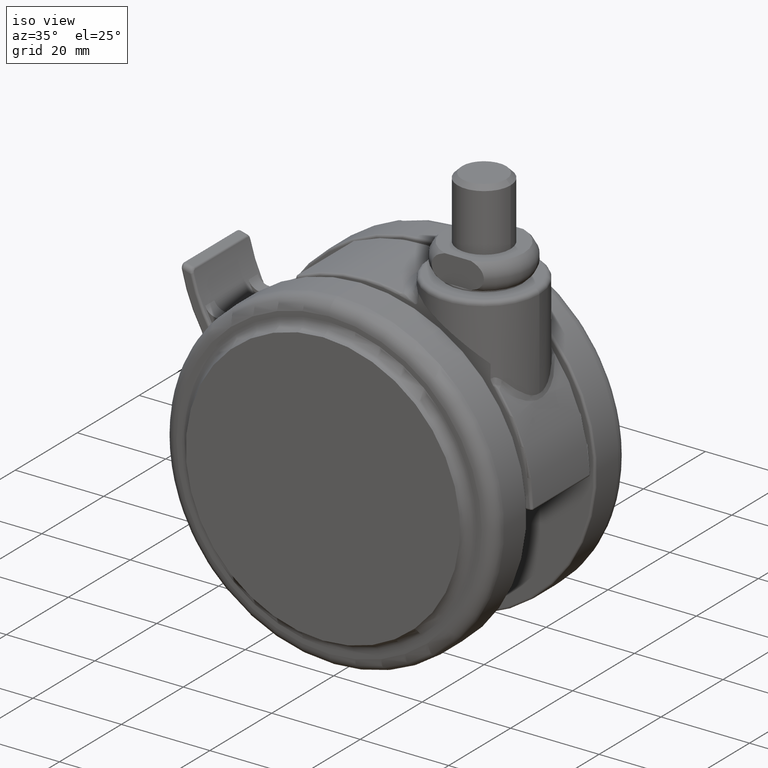
[diagram: clean part render]
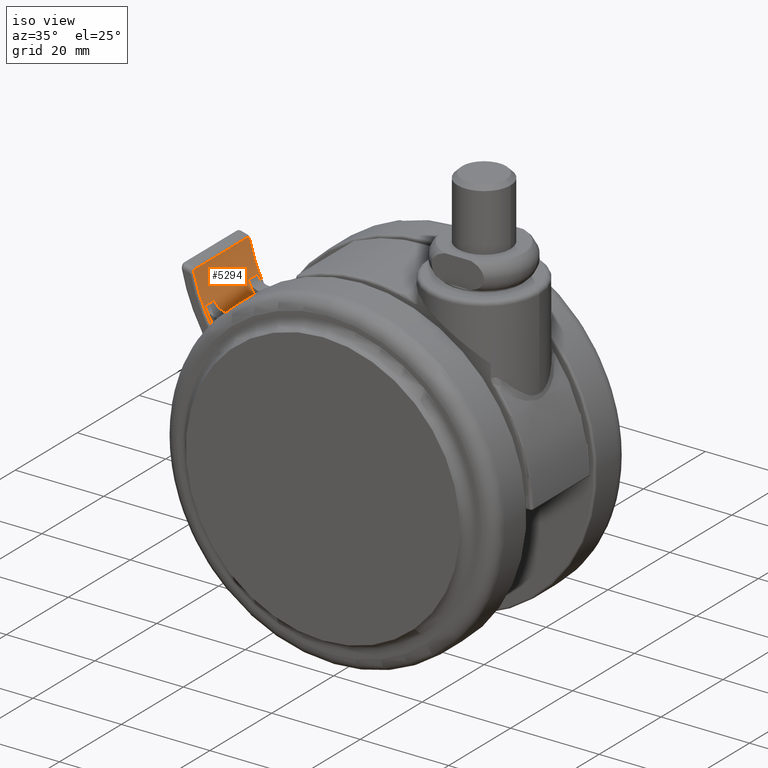
[diagram: same view with one face highlighted and labeled with its STEP entity id]
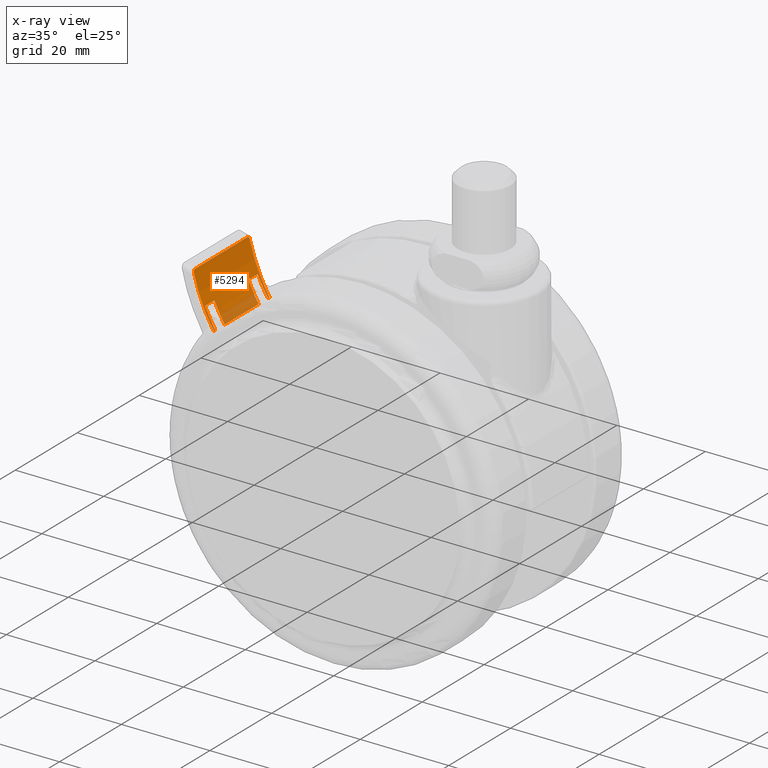
[diagram: x-ray of the same camera — body ghosted, the highlighted face saturated]
A machine part, iso view. The second image highlights one B-rep face of the part: STEP entity #5294.
The next image is the same camera in x-ray: the body ghosted, the highlighted face saturated — about 13% of this face is hidden behind the body in this view.
In plain terms, the highlighted cylindrical surface (partial cylindrical patch) has radius 35.5 mm, axis along (0, -1, 0).
Its self-contained STEP definition (entity closure, byte-faithful):
#338 = VERTEX_POINT ( 'NONE', #7580 ) ;
#370 = EDGE_CURVE ( 'NONE', #2770, #6934, #2335, .T. ) ;
#407 = AXIS2_PLACEMENT_3D ( 'NONE', #2956, #7650, #3652 ) ;
#568 = VECTOR ( 'NONE', #2548, 1000.000000000000000 ) ;
#632 = VERTEX_POINT ( 'NONE', #5551 ) ;
#686 = CARTESIAN_POINT ( 'NONE',  ( -59.40393928824932600, -8.763958975623825900, -11.92187125154323000 ) ) ;
#812 = CARTESIAN_POINT ( 'NONE',  ( -24.73692341792615000, -9.000000000000119000, -4.276679997469274900 ) ) ;
#822 = ORIENTED_EDGE ( 'NONE', *, *, #7906, .T. ) ;
#1310 = CARTESIAN_POINT ( 'NONE',  ( -59.42054732431360300, 8.500000000000000000, -11.84610750027765900 ) ) ;
#1312 = ORIENTED_EDGE ( 'NONE', *, *, #6810, .T. ) ;
#1342 = VECTOR ( 'NONE', #7345, 1000.000000000000000 ) ;
#1376 = AXIS2_PLACEMENT_3D ( 'NONE', #1955, #6691, #2628 ) ;
#1377 = CARTESIAN_POINT ( 'NONE',  ( -59.35975705941407200, -8.954013969658554100, -12.12019701487275600 ) ) ;
#1400 = AXIS2_PLACEMENT_3D ( 'NONE', #7933, #3952, #8586 ) ;
#1474 = VECTOR ( 'NONE', #1742, 1000.000000000000000 ) ;
#1499 = DIRECTION ( 'NONE',  ( -8.795781004952825100E-016, 0.0000000000000000000, 1.000000000000000000 ) ) ;
#1704 = EDGE_CURVE ( 'NONE', #1918, #3530, #4871, .T. ) ;
#1742 = DIRECTION ( 'NONE',  ( 0.0000000000000000000, -1.000000000000000000, 0.0000000000000000000 ) ) ;
#1751 = CARTESIAN_POINT ( 'NONE',  ( -57.14348272376919600, -8.499999933647249200, -18.77029631489950000 ) ) ;
#1813 = ORIENTED_EDGE ( 'NONE', *, *, #7846, .T. ) ;
#1824 = ORIENTED_EDGE ( 'NONE', *, *, #5393, .T. ) ;
#1853 = CARTESIAN_POINT ( 'NONE',  ( -59.36011899188402900, 8.952770057011015600, -12.11858173622638200 ) ) ;
#1918 = VERTEX_POINT ( 'NONE', #5818 ) ;
#1919 = CARTESIAN_POINT ( 'NONE',  ( -54.80971956406580100, 8.499999933647298900, -23.14138068294870000 ) ) ;
#1955 = CARTESIAN_POINT ( 'NONE',  ( -24.73692341792615000, 5.499999933647139900, -4.276679997469274900 ) ) ;
#2051 = CARTESIAN_POINT ( 'NONE',  ( -24.73692341792615000, -8.499999933647249200, -4.276679997469274900 ) ) ;
#2064 = CARTESIAN_POINT ( 'NONE',  ( -59.29747323375579500, -9.000000000000119000, -12.38953377573736100 ) ) ;
#2122 = CARTESIAN_POINT ( 'NONE',  ( -54.80971956406580100, 5.499999933647179900, -23.14138068294870000 ) ) ;
#2253 = VERTEX_POINT ( 'NONE', #5541 ) ;
#2335 = CIRCLE ( 'NONE', #3191, 35.50000000000000000 ) ;
#2347 = VERTEX_POINT ( 'NONE', #6281 ) ;
#2395 = CARTESIAN_POINT ( 'NONE',  ( -57.14348272376919600, -5.499999933647139900, -18.77029631489960300 ) ) ;
#2399 = CARTESIAN_POINT ( 'NONE',  ( -57.14348272376919600, 991.5000000663531000, -18.77029631489960300 ) ) ;
#2535 = CARTESIAN_POINT ( 'NONE',  ( -59.42054732431359600, 8.639875133794554100, -11.84610750027766100 ) ) ;
#2548 = DIRECTION ( 'NONE',  ( -0.0000000000000000000, 1.000000000000000000, -0.0000000000000000000 ) ) ;
#2588 = CIRCLE ( 'NONE', #407, 35.50000000000000000 ) ;
#2628 = DIRECTION ( 'NONE',  ( -1.000000000000000000, 1.514828950852986200E-015, -8.795781004952823100E-016 ) ) ;
#2671 = ORIENTED_EDGE ( 'NONE', *, *, #2674, .T. ) ;
#2674 = EDGE_CURVE ( 'NONE', #7102, #338, #4233, .T. ) ;
#2730 = DIRECTION ( 'NONE',  ( 0.0000000000000000000, 0.0000000000000000000, -1.000000000000000000 ) ) ;
#2770 = VERTEX_POINT ( 'NONE', #3308 ) ;
#2948 = CARTESIAN_POINT ( 'NONE',  ( -24.73692341792615000, -5.499999933647139900, -4.276679997469274900 ) ) ;
#2956 = CARTESIAN_POINT ( 'NONE',  ( -24.73692341792615000, 9.000000000000000000, -4.276679997469274900 ) ) ;
#2979 = DIRECTION ( 'NONE',  ( -0.0000000000000000000, 1.000000000000000000, -0.0000000000000000000 ) ) ;
#2984 = CARTESIAN_POINT ( 'NONE',  ( -24.73692341792615000, 8.499999933647249200, -4.276679997469274900 ) ) ;
#3191 = AXIS2_PLACEMENT_3D ( 'NONE', #2948, #2979, #3736 ) ;
#3221 = ORIENTED_EDGE ( 'NONE', *, *, #7478, .T. ) ;
#3308 = CARTESIAN_POINT ( 'NONE',  ( -54.80971956406580100, -5.499999933647139900, -23.14138068294870000 ) ) ;
#3386 = CIRCLE ( 'NONE', #3754, 35.50000000000000000 ) ;
#3421 = VERTEX_POINT ( 'NONE', #5310 ) ;
#3476 = LINE ( 'NONE', #8084, #4846 ) ;
#3530 = VERTEX_POINT ( 'NONE', #7414 ) ;
#3652 = DIRECTION ( 'NONE',  ( 0.0000000000000000000, 0.0000000000000000000, 1.000000000000000000 ) ) ;
#3685 = DIRECTION ( 'NONE',  ( -1.000000000000000000, 1.514828950852986200E-015, -8.795781004952823100E-016 ) ) ;
#3736 = DIRECTION ( 'NONE',  ( -1.759156200990565000E-015, 0.0000000000000000000, -1.000000000000000000 ) ) ;
#3754 = AXIS2_PLACEMENT_3D ( 'NONE', #812, #5563, #1499 ) ;
#3901 = CARTESIAN_POINT ( 'NONE',  ( -59.32935284803257800, 8.999999999999994700, -12.25372743342735600 ) ) ;
#3926 = EDGE_CURVE ( 'NONE', #6934, #5059, #6890, .T. ) ;
#3952 = DIRECTION ( 'NONE',  ( 0.0000000000000000000, -1.000000000000000000, 0.0000000000000000000 ) ) ;
#3994 = EDGE_CURVE ( 'NONE', #2253, #6179, #8425, .T. ) ;
#4041 = DIRECTION ( 'NONE',  ( 1.505161159488250100E-015, 1.000000000000000000, 0.0000000000000000000 ) ) ;
#4105 = ORIENTED_EDGE ( 'NONE', *, *, #370, .F. ) ;
#4127 = CIRCLE ( 'NONE', #5390, 35.50000000000000700 ) ;
#4150 = B_SPLINE_CURVE_WITH_KNOTS ( 'NONE', 3,
 ( #8565, #3901, #1853, #6598, #2535, #7268 ),
 .UNSPECIFIED., .F., .F.,
 ( 4, 2, 4 ),
 ( 0.0000000000000000000, 0.0004137991927916119000, 0.0008275983855832238000 ),
 .UNSPECIFIED. ) ;
#4233 = LINE ( 'NONE', #5950, #568 ) ;
#4296 = ORIENTED_EDGE ( 'NONE', *, *, #3994, .F. ) ;
#4773 = CARTESIAN_POINT ( 'NONE',  ( -59.41708372527155300, -8.638436266841427600, -11.86202242358504000 ) ) ;
#4788 = EDGE_CURVE ( 'NONE', #632, #1918, #3386, .T. ) ;
#4846 = VECTOR ( 'NONE', #7422, 1000.000000000000000 ) ;
#4871 = LINE ( 'NONE', #8118, #8414 ) ;
#4999 = ORIENTED_EDGE ( 'NONE', *, *, #5355, .T. ) ;
#5059 = VERTEX_POINT ( 'NONE', #1751 ) ;
#5143 = AXIS2_PLACEMENT_3D ( 'NONE', #2051, #6792, #2730 ) ;
#5168 = CYLINDRICAL_SURFACE ( 'NONE', #1400, 35.50000000000000000 ) ;
#5294 = ADVANCED_FACE ( 'NONE', ( #8723 ), #5168, .F. ) ;
#5310 = CARTESIAN_POINT ( 'NONE',  ( -57.14348272376919600, 8.499999933647339700, -18.77029631489960300 ) ) ;
#5355 = EDGE_CURVE ( 'NONE', #5433, #2347, #6751, .T. ) ;
#5390 = AXIS2_PLACEMENT_3D ( 'NONE', #2984, #7675, #3685 ) ;
#5393 = EDGE_CURVE ( 'NONE', #2253, #3421, #8087, .T. ) ;
#5433 = VERTEX_POINT ( 'NONE', #1310 ) ;
#5448 = CARTESIAN_POINT ( 'NONE',  ( -59.39462500494499900, -8.818263999665168400, -11.96410888151509900 ) ) ;
#5538 = EDGE_LOOP ( 'NONE', ( #2671, #822, #3221, #4999, #8230, #5631, #8674, #1813, #6387, #4105, #5952, #4296, #1824, #1312 ) ) ;
#5541 = CARTESIAN_POINT ( 'NONE',  ( -57.14348272376919600, 5.499999933647219800, -18.77029631489960300 ) ) ;
#5551 = CARTESIAN_POINT ( 'NONE',  ( -59.29747323375579500, -9.000000000000119000, -12.38953377573736100 ) ) ;
#5563 = DIRECTION ( 'NONE',  ( -0.0000000000000000000, -1.000000000000000000, -0.0000000000000000000 ) ) ;
#5631 = ORIENTED_EDGE ( 'NONE', *, *, #4788, .T. ) ;
#5818 = CARTESIAN_POINT ( 'NONE',  ( -54.80971956406580100, -9.000000000000119000, -23.14138068294870000 ) ) ;
#5950 = CARTESIAN_POINT ( 'NONE',  ( -54.80971956406580100, 990.5000000000000000, -23.14138068294870000 ) ) ;
#5952 = ORIENTED_EDGE ( 'NONE', *, *, #6106, .T. ) ;
#6106 = EDGE_CURVE ( 'NONE', #2770, #6179, #3476, .T. ) ;
#6110 = CARTESIAN_POINT ( 'NONE',  ( -59.32941231684602500, -9.000000000000000000, -12.25347409780153800 ) ) ;
#6179 = VERTEX_POINT ( 'NONE', #2122 ) ;
#6281 = CARTESIAN_POINT ( 'NONE',  ( -59.42054732431360300, -8.500000000000000000, -11.84610750027765900 ) ) ;
#6338 = VECTOR ( 'NONE', #4041, 1000.000000000000000 ) ;
#6387 = ORIENTED_EDGE ( 'NONE', *, *, #3926, .F. ) ;
#6598 = CARTESIAN_POINT ( 'NONE',  ( -59.40604395306490200, 8.773641313856959600, -11.91298643139902900 ) ) ;
#6624 = CIRCLE ( 'NONE', #5143, 35.50000000000000000 ) ;
#6675 = CARTESIAN_POINT ( 'NONE',  ( -59.42054732431360300, 990.5000000000000000, -11.84610750027765900 ) ) ;
#6691 = DIRECTION ( 'NONE',  ( -1.505161159488250100E-015, -1.000000000000000000, -0.0000000000000000000 ) ) ;
#6751 = LINE ( 'NONE', #6675, #1342 ) ;
#6773 = CARTESIAN_POINT ( 'NONE',  ( -59.42054732431360300, -8.500000000000000000, -11.84610750027765900 ) ) ;
#6792 = DIRECTION ( 'NONE',  ( -0.0000000000000000000, 1.000000000000000000, -0.0000000000000000000 ) ) ;
#6810 = EDGE_CURVE ( 'NONE', #3421, #7102, #4127, .T. ) ;
#6890 = LINE ( 'NONE', #2399, #1474 ) ;
#6934 = VERTEX_POINT ( 'NONE', #2395 ) ;
#6940 = VERTEX_POINT ( 'NONE', #7134 ) ;
#7006 = B_SPLINE_CURVE_WITH_KNOTS ( 'NONE', 3,
 ( #6773, #8741, #4773, #686, #5448, #1377, #6110, #2064 ),
 .UNSPECIFIED., .F., .F.,
 ( 4, 2, 2, 4 ),
 ( 0.0000000000000000000, 0.0002101498797898402300, 0.0004202997595796804700, 0.0008405995191593573600 ),
 .UNSPECIFIED. ) ;
#7102 = VERTEX_POINT ( 'NONE', #1919 ) ;
#7134 = CARTESIAN_POINT ( 'NONE',  ( -59.29747323375579500, 9.000000000000000000, -12.38953377573733900 ) ) ;
#7268 = CARTESIAN_POINT ( 'NONE',  ( -59.42054732431360300, 8.500000000000000000, -11.84610750027765900 ) ) ;
#7345 = DIRECTION ( 'NONE',  ( 0.0000000000000000000, -1.000000000000000000, 0.0000000000000000000 ) ) ;
#7414 = CARTESIAN_POINT ( 'NONE',  ( -54.80971956406580100, -8.499999933647249200, -23.14138068294870000 ) ) ;
#7422 = DIRECTION ( 'NONE',  ( -0.0000000000000000000, 1.000000000000000000, -0.0000000000000000000 ) ) ;
#7478 = EDGE_CURVE ( 'NONE', #6940, #5433, #4150, .T. ) ;
#7580 = CARTESIAN_POINT ( 'NONE',  ( -54.80971956406580100, 9.000000000000000000, -23.14138068294870000 ) ) ;
#7650 = DIRECTION ( 'NONE',  ( 0.0000000000000000000, 1.000000000000000000, 0.0000000000000000000 ) ) ;
#7675 = DIRECTION ( 'NONE',  ( -1.505161159488250100E-015, -1.000000000000000000, -0.0000000000000000000 ) ) ;
#7846 = EDGE_CURVE ( 'NONE', #3530, #5059, #6624, .T. ) ;
#7906 = EDGE_CURVE ( 'NONE', #338, #6940, #2588, .T. ) ;
#7933 = CARTESIAN_POINT ( 'NONE',  ( -24.73692341792615000, 990.5000000000000000, -4.276679997469274900 ) ) ;
#8013 = CARTESIAN_POINT ( 'NONE',  ( -57.14348272377069500, -991.5000000663531000, -18.77029631489960300 ) ) ;
#8084 = CARTESIAN_POINT ( 'NONE',  ( -54.80971956406580100, 990.5000000000000000, -23.14138068294870000 ) ) ;
#8087 = LINE ( 'NONE', #8013, #6338 ) ;
#8118 = CARTESIAN_POINT ( 'NONE',  ( -54.80971956406580100, 990.5000000000000000, -23.14138068294870000 ) ) ;
#8230 = ORIENTED_EDGE ( 'NONE', *, *, #8699, .T. ) ;
#8299 = DIRECTION ( 'NONE',  ( -0.0000000000000000000, 1.000000000000000000, -0.0000000000000000000 ) ) ;
#8414 = VECTOR ( 'NONE', #8299, 1000.000000000000000 ) ;
#8425 = CIRCLE ( 'NONE', #1376, 35.50000000000000700 ) ;
#8565 = CARTESIAN_POINT ( 'NONE',  ( -59.29747323375579500, 9.000000000000000000, -12.38953377573733900 ) ) ;
#8586 = DIRECTION ( 'NONE',  ( 0.0000000000000000000, 0.0000000000000000000, -1.000000000000000000 ) ) ;
#8674 = ORIENTED_EDGE ( 'NONE', *, *, #1704, .T. ) ;
#8699 = EDGE_CURVE ( 'NONE', #2347, #632, #7006, .T. ) ;
#8723 = FACE_OUTER_BOUND ( 'NONE', #5538, .T. ) ;
#8741 = CARTESIAN_POINT ( 'NONE',  ( -59.42054732431361000, -8.570147487109236900, -11.84610750027766300 ) ) ;